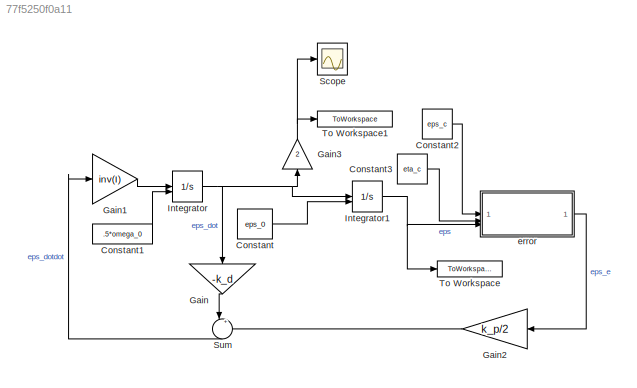
MODEL slx_77f5250f0a11
KIND model
CONFIG AbsTol = auto
CONFIG EnableMultiTasking = off
CONFIG FixedStep = auto
CONFIG MaxStep = auto
CONFIG MinStep = auto
CONFIG RelTol = 1e-3
CONFIG SampleTimeConstraint = Unconstrained
CONFIG SolverName = VariableStepAuto
CONFIG StartTime = 0.0
CONFIG StopTime = 60
BLOCK [Constant] Constant
  Value = eps_0
BLOCK [Constant] Constant1
  Value = .5*omega_0
BLOCK [Constant] Constant2
  Value = eps_c
BLOCK [Constant] Constant3
  Value = eta_c
BLOCK [Gain] Gain
  Gain = -k_d
  Multiplication = Matrix(K*u)
  NameLocation = left
BLOCK [Gain] Gain1
  Gain = inv(I)
  Multiplication = Matrix(K*u)
BLOCK [Gain] Gain2
  Gain = k_p/2
  Multiplication = Matrix(K*u)
  NameLocation = top
BLOCK [Gain] Gain3
  Gain = 2
  NameLocation = right
BLOCK [Integrator] Integrator
  InitialCondition = .5*omega_0
  InitialConditionSource = external
BLOCK [Integrator] Integrator1
  InitialConditionSource = external
BLOCK [Scope] Scope
  Floating = off
  NumInputPorts = 1
  ScopeSpecificationString = Simulink.scopes.TimeScopeBlockCfg('CurrentConfiguration', extmgr.ConfigurationSet(extmgr.Configuration('Core','General UI',true),extmgr.Configuration('Core','Source UI',true),extmgr.Configuration('Sources','WiredSimulink',true),extmgr.Configuration('Visuals','Time Domain',true,'SerializedDisplays',{struct('MinYLimReal','-0.10823','MaxYLimReal','0.23539','YLabelReal','','MinYLimMag','0.00000','MaxY...<+1377ch>
BLOCK [Sum] Sum
  Inputs = |++
  NameLocation = left
BLOCK [ToWorkspace] To Workspace
  FixptAsFi = on
  MaxDataPoints = inf
  SampleTime = -1
  Save2DSignal = 2-D array (concatenate along first dimension)
  VariableName = eps
BLOCK [ToWorkspace] To Workspace1
  FixptAsFi = on
  MaxDataPoints = inf
  SampleTime = -1
  Save2DSignal = 2-D array (concatenate along first dimension)
  VariableName = omega
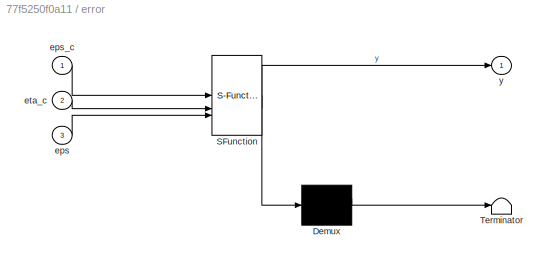
BLOCK [SubSystem] error
  ErrorFcn = Stateflow.Translate.translate
  LibrarySourceBlock = simulink/User-Defined\nFunctions/MATLAB Function
  PermitHierarchicalResolution = ExplicitOnly
  SFBlockType = MATLAB Function
  TreatAsAtomicUnit = on
BLOCK [Demux] error/ Demux 
  Outputs = 1
BLOCK [S-Function] error/ SFunction 
  EnableBusSupport = on
  FunctionName = sf_sfun
  PortCounts = [3 2]
  SFcnIsStateOwnerBlock = off
  SFunctionDeploymentMode = off
  Tag = Stateflow S-Function 2
BLOCK [Terminator] error/ Terminator 
BLOCK [Inport] error/eps
  Port = 3
BLOCK [Inport] error/eps_c
BLOCK [Inport] error/eta_c
  Port = 2
BLOCK [Outport] error/y
LINE Constant1:1 -> Integrator:2
LINE Constant2:1 -> error:1
LINE Constant3:1 -> error:2
LINE Constant:1 -> Integrator1:2
LINE Gain1:1 -> Integrator:1
LINE Gain2:1 -> Sum:2
NET Gain3:1 -> Scope:1, To Workspace1:1
LINE Gain:1 -> Sum:1
NET Integrator1:1 -> To Workspace:1, error:3
NET Integrator:1 -> Gain3:1, Gain:1, Integrator1:1
LINE Sum:1 -> Gain1:1
LINE error:1 -> Gain2:1
note: NET lines group one-source signal fan-out (src -> all destinations, sorted); 1:1 wires keep LINE
CHART error states=1 transitions=1
  STATE_LABEL 'eML_blk_kernel()'
  STATE_LABEL "SCRIPT:\nfunction y = fcn(eps_c, eta_c, eps)\neta = sqrt(1-eps'*eps);\n\nq_e = quatmultiply(quatconj([eta eps']), [eta_c eps_c']); % assume eta = 1 \ny = q_e(2:4)';"
CHART  states=0 transitions=0
